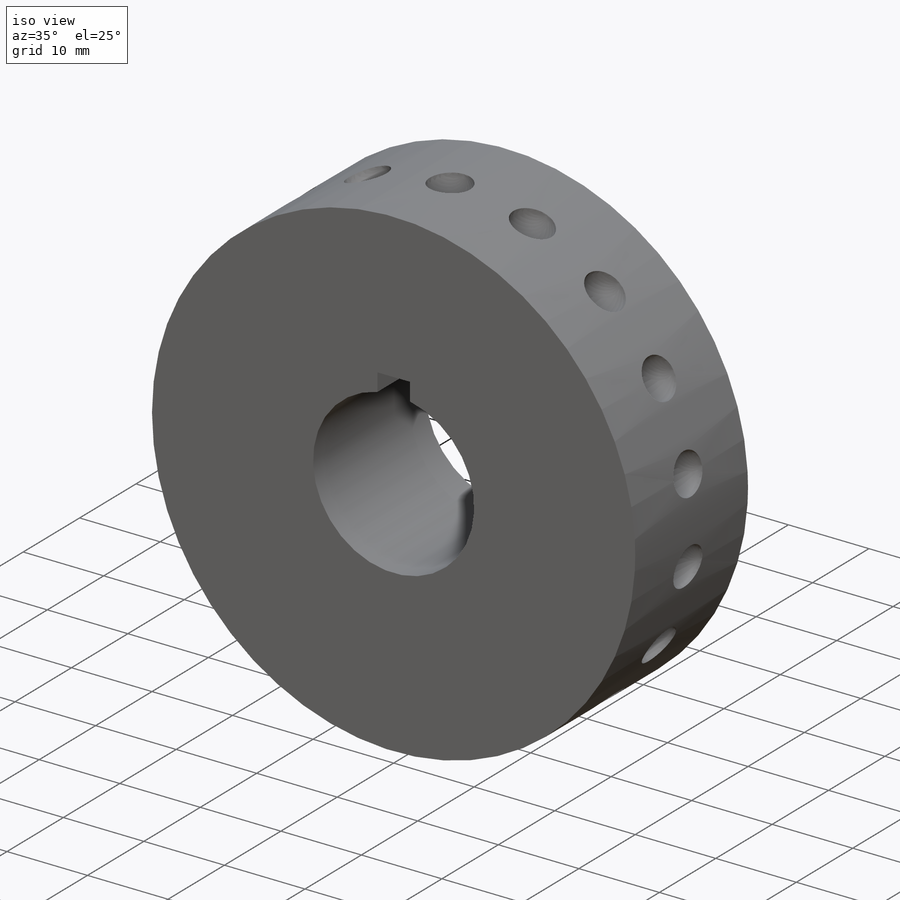
[diagram: iso view]
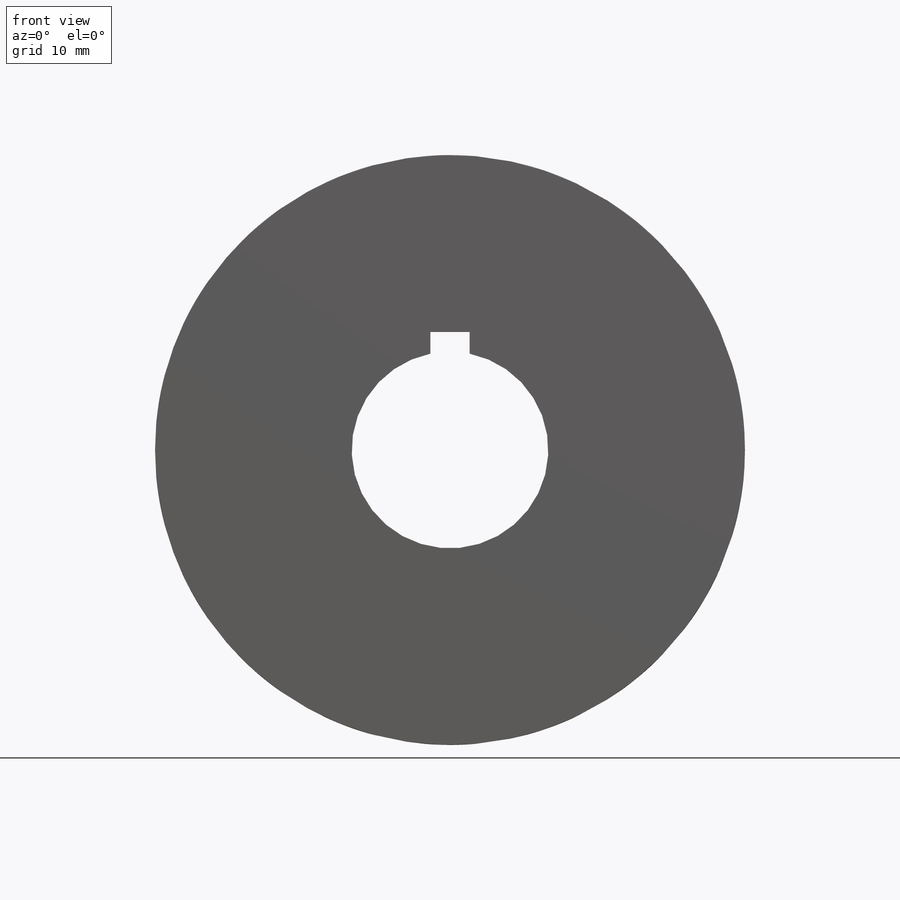
[diagram: front view]
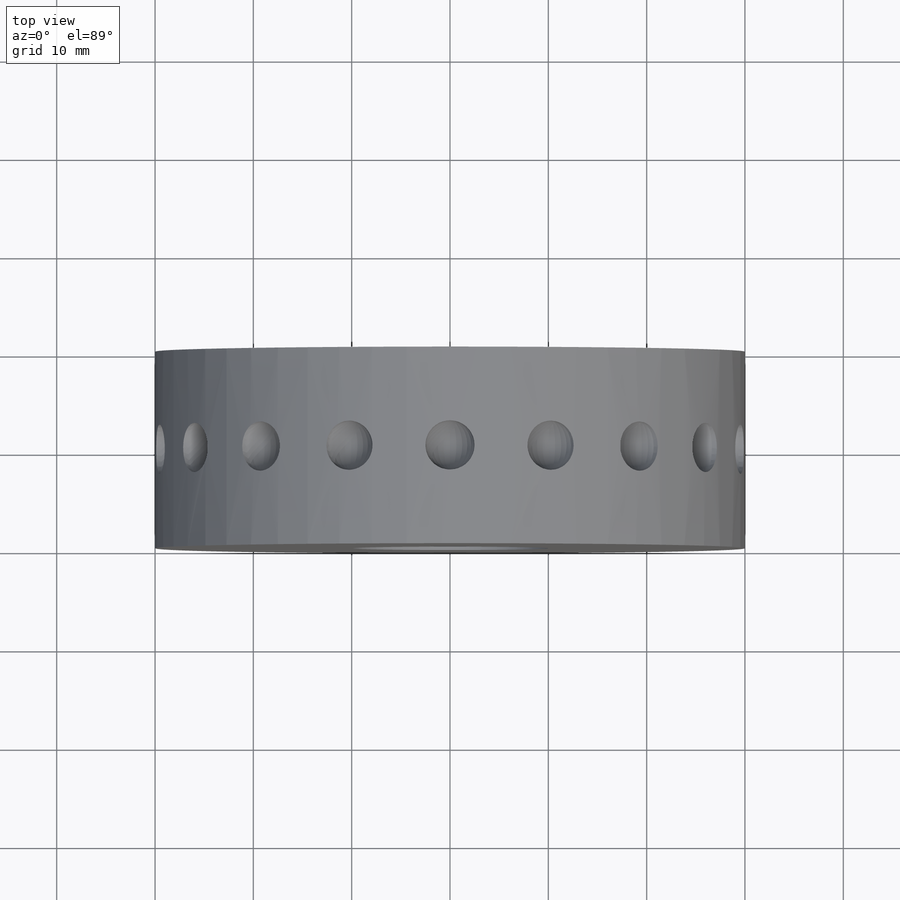
[diagram: top view]
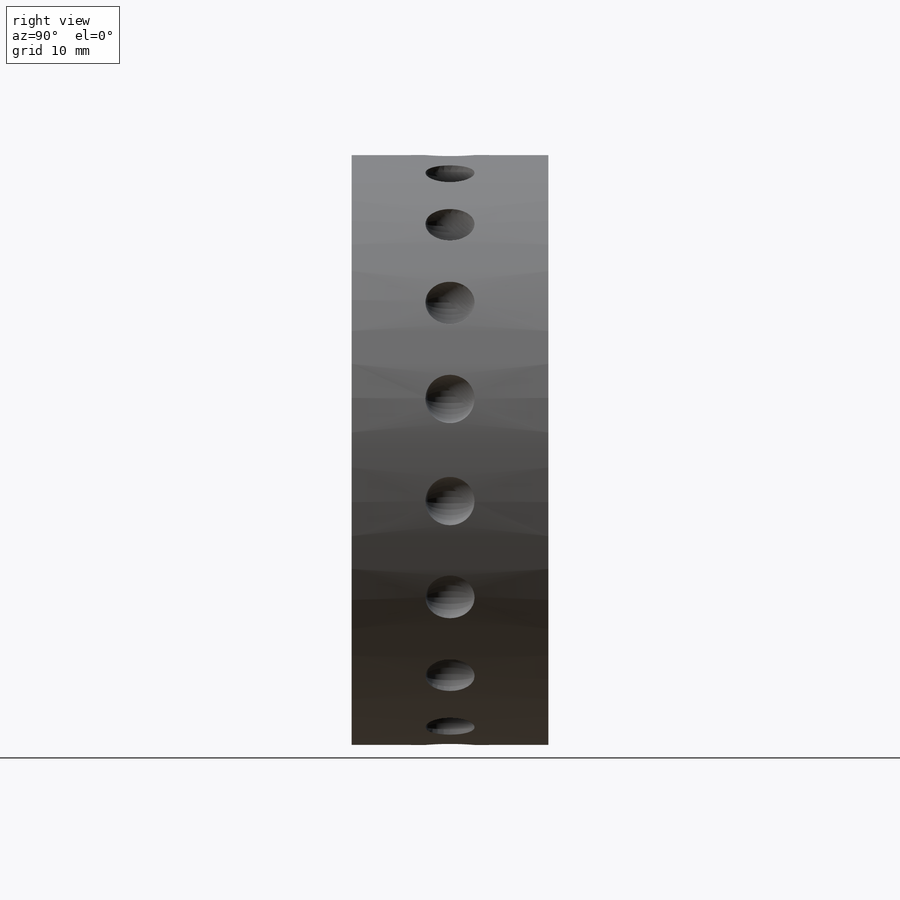
[diagram: right view]
SOLIDWORKS PART (.sldprt)
format: sldprt  version: not decoded by parser v0  size: 573,952 bytes
history: native  units: mm
features: sketch x5, plane x4, cut_extrude x3, cut_revolve x2, material x1, extrude x1, pattern_circular x1 (+8 scaffold rows collapsed)
feature tree (25):
  scaffold x8  (default folders/planes/origin — collapsed)
  material  "Matériau <non spécifié>"
  plane  "Plan de face"
  plane  "Plan de dessus"
  plane  "Plan de droite"
  sketch  "Esquisse1"  dims[D1=60.0mm]
  extrude  "Boss.-Extru.1"  Depth=20mm
  sketch  "Esquisse2"  dims[D1=50.0mm D2=8.0mm]
  cut_extrude  "Enlèv. mat.-Extru.1"  Depth=15mm
  sketch  "Esquisse3"  dims[D1=20.0mm]
  cut_extrude  "Enlèv. mat.-Extru.2"  [1 undecoded]
  sketch  "Esquisse4"  dims[D1=4.0mm D2=12.0mm]
  cut_extrude  "Enlèv. mat.-Extru.3"  [1 undecoded]
  plane  "Plan1"
  sketch  "Esquisse7"  dims[D2=2.5mm D1=10.0mm]
  cut_revolve  "Enlèvement de matière-Révolution6"  Angle=360deg
  cut_revolve  "Axe3"  [1 undecoded]
  pattern_circular  "Répétition circulaire1"  Count=18  [1 undecoded]
decode coverage: 9 of 12 modeling features carry decoded parameters
note: 4 parameter values undecoded
summary: no parameter record found for 3 features
note: suppression state not decoded; provenance and decode notes live in map.json
